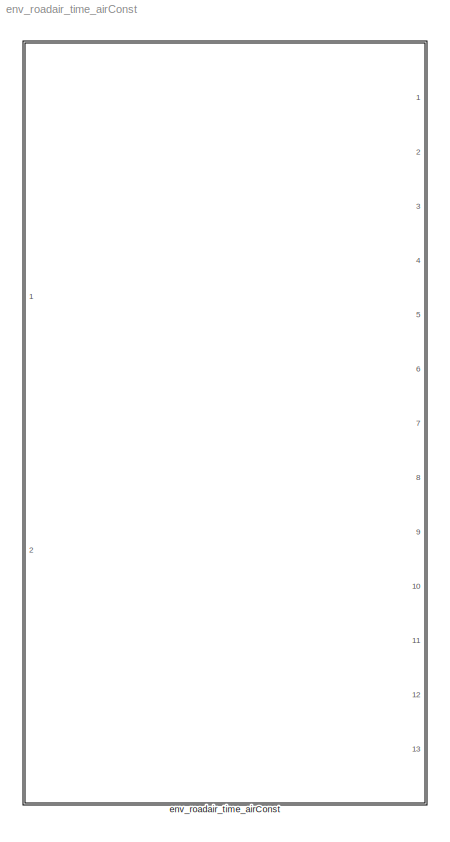
MODEL env_roadair_time_airConst
KIND library
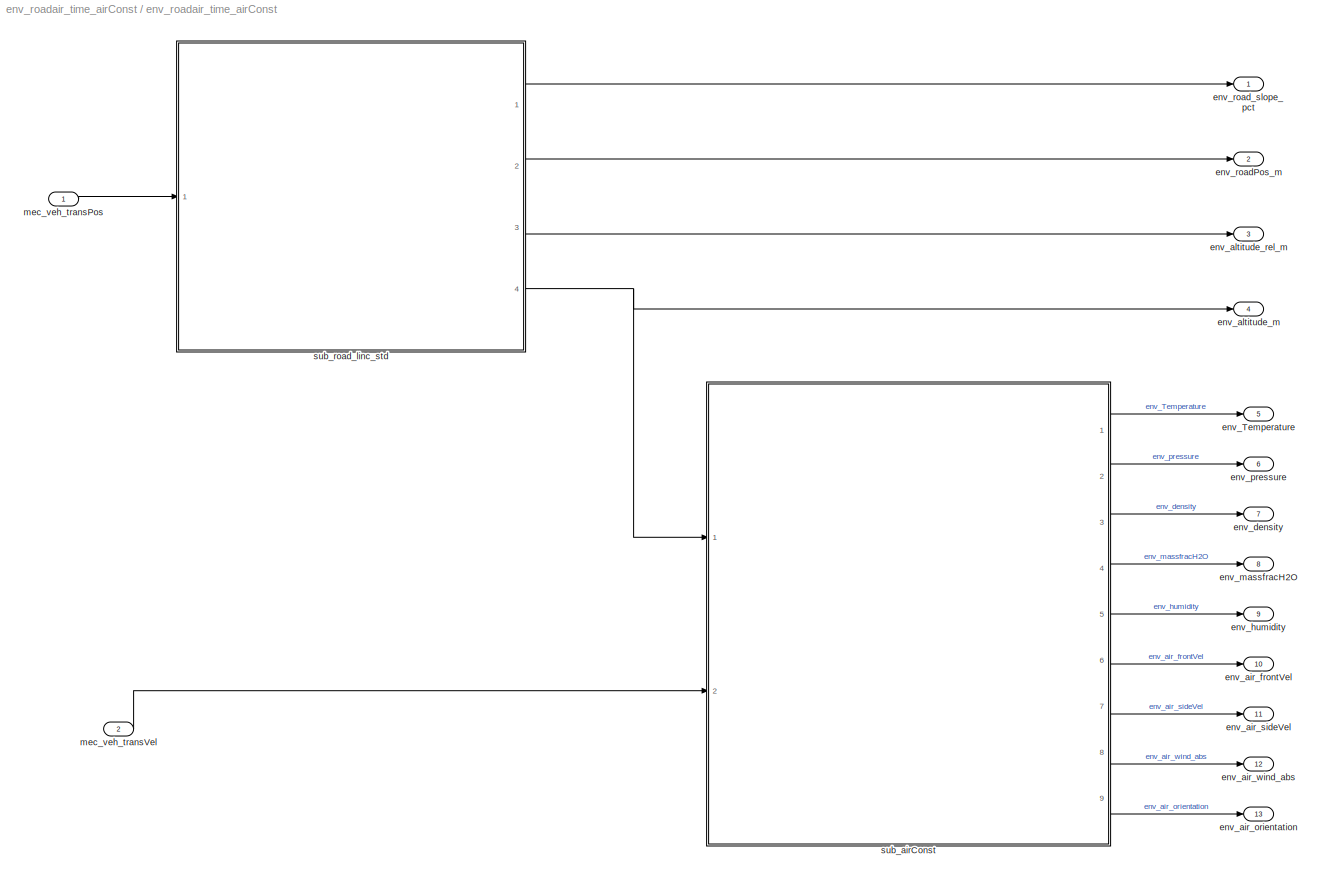
BLOCK [SubSystem] env_roadair_time_airConst
  Ports = [2, 13]
  RequestExecContextInheritance = off
  SID = 1
  TreatAsAtomicUnit = on
  Variant = off
BLOCK [Outport] env_roadair_time_airConst/env_Temperature
  IconDisplay = Port number
  Port = 5
  SID = 227
BLOCK [Outport] env_roadair_time_airConst/env_air_frontVel
  IconDisplay = Port number
  Port = 10
  SID = 232
BLOCK [Outport] env_roadair_time_airConst/env_air_orientation
  IconDisplay = Port number
  Port = 13
  SID = 235
BLOCK [Outport] env_roadair_time_airConst/env_air_sideVel
  IconDisplay = Port number
  Port = 11
  SID = 233
BLOCK [Outport] env_roadair_time_airConst/env_air_wind_abs
  IconDisplay = Port number
  Port = 12
  SID = 234
BLOCK [Outport] env_roadair_time_airConst/env_altitude_m
  IconDisplay = Port number
  Port = 4
  SID = 101
BLOCK [Outport] env_roadair_time_airConst/env_altitude_rel_m
  IconDisplay = Port number
  Port = 3
  SID = 100
BLOCK [Outport] env_roadair_time_airConst/env_density
  IconDisplay = Port number
  Port = 7
  SID = 229
BLOCK [Outport] env_roadair_time_airConst/env_humidity
  IconDisplay = Port number
  Port = 9
  SID = 231
BLOCK [Outport] env_roadair_time_airConst/env_massfracH2O
  IconDisplay = Port number
  Port = 8
  SID = 230
BLOCK [Outport] env_roadair_time_airConst/env_pressure
  IconDisplay = Port number
  Port = 6
  SID = 228
BLOCK [Outport] env_roadair_time_airConst/env_roadPos_m
  IconDisplay = Port number
  Port = 2
  SID = 99
BLOCK [Outport] env_roadair_time_airConst/env_road_slope_pct
  IconDisplay = Port number
  SID = 96
BLOCK [Inport] env_roadair_time_airConst/mec_veh_transPos
  IconDisplay = Port number
  SID = 5
BLOCK [Inport] env_roadair_time_airConst/mec_veh_transVel
  IconDisplay = Port number
  Port = 2
  SID = 224
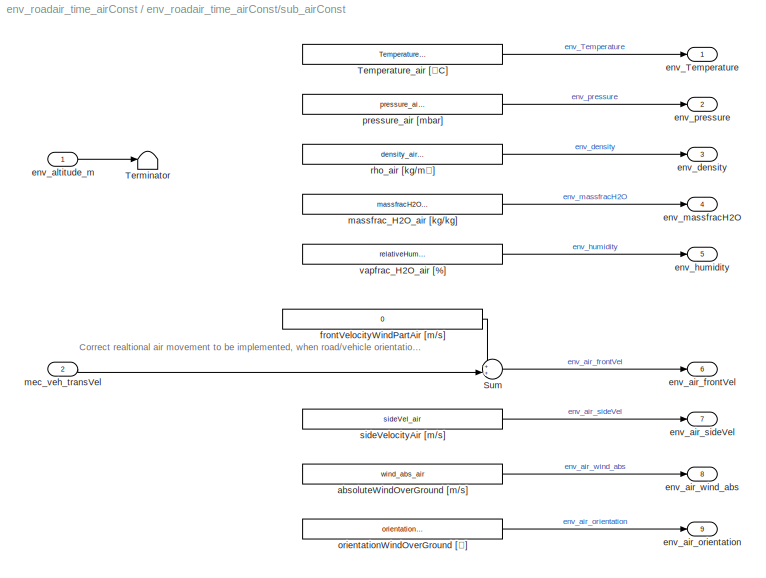
BLOCK [SubSystem] env_roadair_time_airConst/sub_airConst
  Ports = [2, 9]
  RequestExecContextInheritance = off
  SID = 225
  Variant = off
BLOCK [Sum] env_roadair_time_airConst/sub_airConst/Sum
  IconShape = round
  InputSameDT = off
  Inputs = ++|
  OutDataTypeStr = Inherit: Inherit via internal rule
  Ports = [2, 1]
  SID = 238
  SaturateOnIntegerOverflow = off
BLOCK [Constant] env_roadair_time_airConst/sub_airConst/Temperature_air [°C]
  SID = 239
  Value = Temperature_air_C
BLOCK [Terminator] env_roadair_time_airConst/sub_airConst/Terminator
  SID = 240
BLOCK [Constant] env_roadair_time_airConst/sub_airConst/absoluteWindOverGround [m//s]
  SID = 241
  Value = wind_abs_air
BLOCK [Outport] env_roadair_time_airConst/sub_airConst/env_Temperature
  IconDisplay = Port number
  SID = 249
BLOCK [Outport] env_roadair_time_airConst/sub_airConst/env_air_frontVel
  IconDisplay = Port number
  Port = 6
  SID = 254
BLOCK [Outport] env_roadair_time_airConst/sub_airConst/env_air_orientation
  IconDisplay = Port number
  Port = 9
  SID = 257
BLOCK [Outport] env_roadair_time_airConst/sub_airConst/env_air_sideVel
  IconDisplay = Port number
  Port = 7
  SID = 255
BLOCK [Outport] env_roadair_time_airConst/sub_airConst/env_air_wind_abs
  IconDisplay = Port number
  Port = 8
  SID = 256
BLOCK [Inport] env_roadair_time_airConst/sub_airConst/env_altitude_m
  IconDisplay = Port number
  SID = 236
BLOCK [Outport] env_roadair_time_airConst/sub_airConst/env_density
  IconDisplay = Port number
  Port = 3
  SID = 251
BLOCK [Outport] env_roadair_time_airConst/sub_airConst/env_humidity
  IconDisplay = Port number
  Port = 5
  SID = 253
BLOCK [Outport] env_roadair_time_airConst/sub_airConst/env_massfracH2O
  IconDisplay = Port number
  Port = 4
  SID = 252
BLOCK [Outport] env_roadair_time_airConst/sub_airConst/env_pressure
  IconDisplay = Port number
  Port = 2
  SID = 250
BLOCK [Constant] env_roadair_time_airConst/sub_airConst/frontVelocityWindPartAir [m//s]
  SID = 242
  Value = 0
BLOCK [Constant] env_roadair_time_airConst/sub_airConst/massfrac_H2O_air [kg//kg]
  SID = 243
  Value = massfracH2O_air
BLOCK [Inport] env_roadair_time_airConst/sub_airConst/mec_veh_transVel
  IconDisplay = Port number
  Port = 2
  SID = 237
BLOCK [Constant] env_roadair_time_airConst/sub_airConst/orientationWindOverGround [°]
  SID = 244
  Value = orientation_air
BLOCK [Constant] env_roadair_time_airConst/sub_airConst/pressure_air [mbar]
  SID = 245
  Value = pressure_air_mbar
BLOCK [Constant] env_roadair_time_airConst/sub_airConst/rho_air [kg//m³]
  SID = 246
  Value = density_air_kgm3
BLOCK [Constant] env_roadair_time_airConst/sub_airConst/sideVelocityAir [m//s]
  SID = 247
  Value = sideVel_air
BLOCK [Constant] env_roadair_time_airConst/sub_airConst/vapfrac_H2O_air [%]
  SID = 248
  Value = relativeHumidity_air
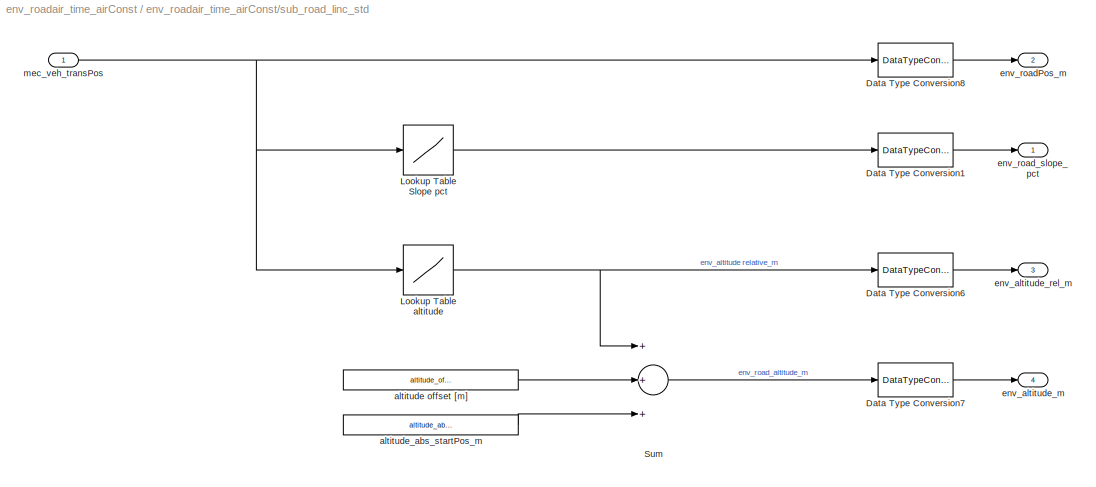
BLOCK [SubSystem] env_roadair_time_airConst/sub_road_linc_std
  Ports = [1, 4]
  RequestExecContextInheritance = off
  SID = 19
  Variant = off
BLOCK [DataTypeConversion] env_roadair_time_airConst/sub_road_linc_std/Data Type Conversion1
  OutDataTypeStr = double
  RndMeth = Floor
  SID = 24
  SaturateOnIntegerOverflow = off
BLOCK [DataTypeConversion] env_roadair_time_airConst/sub_road_linc_std/Data Type Conversion6
  OutDataTypeStr = double
  RndMeth = Floor
  SID = 28
  SaturateOnIntegerOverflow = off
BLOCK [DataTypeConversion] env_roadair_time_airConst/sub_road_linc_std/Data Type Conversion7
  OutDataTypeStr = double
  RndMeth = Floor
  SID = 29
  SaturateOnIntegerOverflow = off
BLOCK [DataTypeConversion] env_roadair_time_airConst/sub_road_linc_std/Data Type Conversion8
  OutDataTypeStr = double
  RndMeth = Floor
  SID = 30
  SaturateOnIntegerOverflow = off
BLOCK [Lookup] env_roadair_time_airConst/sub_road_linc_std/Lookup Table Slope pct
  AttributesFormatString = Method: %<LookUpMeth>\n[%<InputValues>; %<Table>]\n
  InputValues = CYC.s
  LookUpMeth = Use Input Below
  SID = 290
  SaturateOnIntegerOverflow = off
  Table = CYC.pct_slope
BLOCK [Lookup] env_roadair_time_airConst/sub_road_linc_std/Lookup Table altitude
  AttributesFormatString = Method: %<LookUpMeth>\n[%<InputValues>; %<Table>]
  InputValues = CYC.s
  SID = 291
  SaturateOnIntegerOverflow = off
  Table = CYC.Altitude
BLOCK [Sum] env_roadair_time_airConst/sub_road_linc_std/Sum
  InputSameDT = off
  Inputs = +++
  OutDataTypeStr = Inherit: Inherit via internal rule
  Ports = [3, 1]
  SID = 31
  SaturateOnIntegerOverflow = off
BLOCK [Constant] env_roadair_time_airConst/sub_road_linc_std/altitude offset [m]
  SID = 32
  Value = altitude_offset_m
BLOCK [Constant] env_roadair_time_airConst/sub_road_linc_std/altitude_abs_startPos_m
  SID = 33
  Value = altitude_abs_startPos_m
BLOCK [Outport] env_roadair_time_airConst/sub_road_linc_std/env_altitude_m
  IconDisplay = Port number
  Port = 4
  SID = 94
BLOCK [Outport] env_roadair_time_airConst/sub_road_linc_std/env_altitude_rel_m
  IconDisplay = Port number
  Port = 3
  SID = 93
BLOCK [Outport] env_roadair_time_airConst/sub_road_linc_std/env_roadPos_m
  IconDisplay = Port number
  Port = 2
  SID = 92
BLOCK [Outport] env_roadair_time_airConst/sub_road_linc_std/env_road_slope_pct
  IconDisplay = Port number
  SID = 89
BLOCK [Inport] env_roadair_time_airConst/sub_road_linc_std/mec_veh_transPos
  IconDisplay = Port number
  OutDataTypeStr = double
  SID = 23
ANNOTATION env_roadair_time_airConst/sub_airConst: Correct realtional air movement to be implemented, when road/vehicle orientation is available
LINE env_roadair_time_airConst/mec_veh_transPos:1 -> env_roadair_time_airConst/sub_road_linc_std:1
LINE env_roadair_time_airConst/mec_veh_transVel:1 -> env_roadair_time_airConst/sub_airConst:2
LINE env_roadair_time_airConst/sub_airConst/Sum:1 -> env_roadair_time_airConst/sub_airConst/env_air_frontVel:1
LINE env_roadair_time_airConst/sub_airConst/Temperature_air [°C]:1 -> env_roadair_time_airConst/sub_airConst/env_Temperature:1
LINE env_roadair_time_airConst/sub_airConst/absoluteWindOverGround [m//s]:1 -> env_roadair_time_airConst/sub_airConst/env_air_wind_abs:1
LINE env_roadair_time_airConst/sub_airConst/env_altitude_m:1 -> env_roadair_time_airConst/sub_airConst/Terminator:1
LINE env_roadair_time_airConst/sub_airConst/frontVelocityWindPartAir [m//s]:1 -> env_roadair_time_airConst/sub_airConst/Sum:1
LINE env_roadair_time_airConst/sub_airConst/massfrac_H2O_air [kg//kg]:1 -> env_roadair_time_airConst/sub_airConst/env_massfracH2O:1
LINE env_roadair_time_airConst/sub_airConst/mec_veh_transVel:1 -> env_roadair_time_airConst/sub_airConst/Sum:2
LINE env_roadair_time_airConst/sub_airConst/orientationWindOverGround [°]:1 -> env_roadair_time_airConst/sub_airConst/env_air_orientation:1
LINE env_roadair_time_airConst/sub_airConst/pressure_air [mbar]:1 -> env_roadair_time_airConst/sub_airConst/env_pressure:1
LINE env_roadair_time_airConst/sub_airConst/rho_air [kg//m³]:1 -> env_roadair_time_airConst/sub_airConst/env_density:1
LINE env_roadair_time_airConst/sub_airConst/sideVelocityAir [m//s]:1 -> env_roadair_time_airConst/sub_airConst/env_air_sideVel:1
LINE env_roadair_time_airConst/sub_airConst/vapfrac_H2O_air [%]:1 -> env_roadair_time_airConst/sub_airConst/env_humidity:1
LINE env_roadair_time_airConst/sub_airConst:1 -> env_roadair_time_airConst/env_Temperature:1
LINE env_roadair_time_airConst/sub_airConst:2 -> env_roadair_time_airConst/env_pressure:1
LINE env_roadair_time_airConst/sub_airConst:3 -> env_roadair_time_airConst/env_density:1
LINE env_roadair_time_airConst/sub_airConst:4 -> env_roadair_time_airConst/env_massfracH2O:1
LINE env_roadair_time_airConst/sub_airConst:5 -> env_roadair_time_airConst/env_humidity:1
LINE env_roadair_time_airConst/sub_airConst:6 -> env_roadair_time_airConst/env_air_frontVel:1
LINE env_roadair_time_airConst/sub_airConst:7 -> env_roadair_time_airConst/env_air_sideVel:1
LINE env_roadair_time_airConst/sub_airConst:8 -> env_roadair_time_airConst/env_air_wind_abs:1
LINE env_roadair_time_airConst/sub_airConst:9 -> env_roadair_time_airConst/env_air_orientation:1
LINE env_roadair_time_airConst/sub_road_linc_std/Data Type Conversion1:1 -> env_roadair_time_airConst/sub_road_linc_std/env_road_slope_pct:1
LINE env_roadair_time_airConst/sub_road_linc_std/Data Type Conversion6:1 -> env_roadair_time_airConst/sub_road_linc_std/env_altitude_rel_m:1
LINE env_roadair_time_airConst/sub_road_linc_std/Data Type Conversion7:1 -> env_roadair_time_airConst/sub_road_linc_std/env_altitude_m:1
LINE env_roadair_time_airConst/sub_road_linc_std/Data Type Conversion8:1 -> env_roadair_time_airConst/sub_road_linc_std/env_roadPos_m:1
LINE env_roadair_time_airConst/sub_road_linc_std/Lookup Table Slope pct:1 -> env_roadair_time_airConst/sub_road_linc_std/Data Type Conversion1:1
NET env_roadair_time_airConst/sub_road_linc_std/Lookup Table altitude:1 -> env_roadair_time_airConst/sub_road_linc_std/Data Type Conversion6:1, env_roadair_time_airConst/sub_road_linc_std/Sum:1
LINE env_roadair_time_airConst/sub_road_linc_std/Sum:1 -> env_roadair_time_airConst/sub_road_linc_std/Data Type Conversion7:1
LINE env_roadair_time_airConst/sub_road_linc_std/altitude offset [m]:1 -> env_roadair_time_airConst/sub_road_linc_std/Sum:2
LINE env_roadair_time_airConst/sub_road_linc_std/altitude_abs_startPos_m:1 -> env_roadair_time_airConst/sub_road_linc_std/Sum:3
NET env_roadair_time_airConst/sub_road_linc_std/mec_veh_transPos:1 -> env_roadair_time_airConst/sub_road_linc_std/Data Type Conversion8:1, env_roadair_time_airConst/sub_road_linc_std/Lookup Table Slope pct:1, env_roadair_time_airConst/sub_road_linc_std/Lookup Table altitude:1
LINE env_roadair_time_airConst/sub_road_linc_std:1 -> env_roadair_time_airConst/env_road_slope_pct:1
LINE env_roadair_time_airConst/sub_road_linc_std:2 -> env_roadair_time_airConst/env_roadPos_m:1
LINE env_roadair_time_airConst/sub_road_linc_std:3 -> env_roadair_time_airConst/env_altitude_rel_m:1
NET env_roadair_time_airConst/sub_road_linc_std:4 -> env_roadair_time_airConst/env_altitude_m:1, env_roadair_time_airConst/sub_airConst:1
note: NET lines group one-source signal fan-out (src -> all destinations, sorted); 1:1 wires keep LINE
